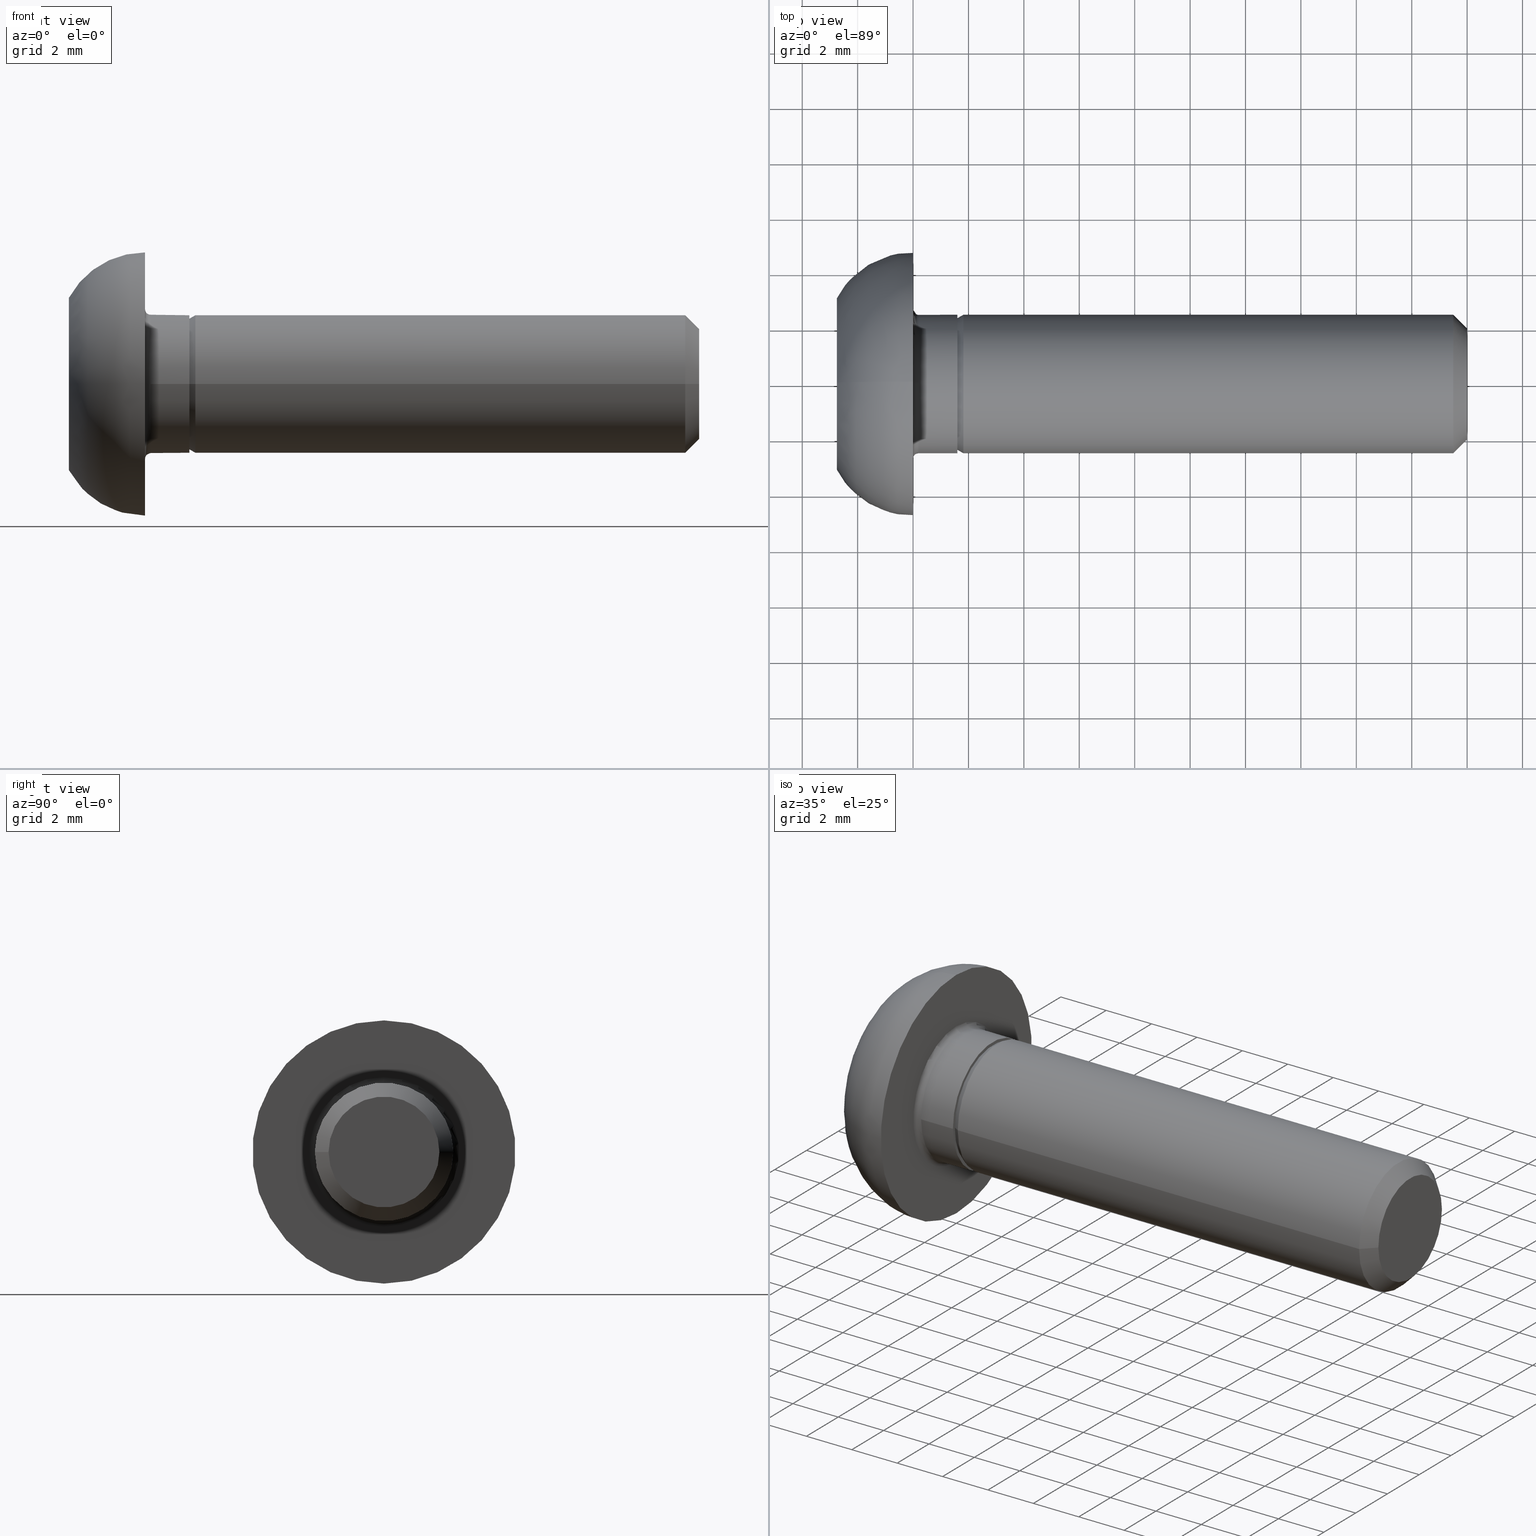
[diagram: canonical four-view strip — front | top / right | iso, engineering-drawing reading convention]
A machine part, canonical four-view strip (front | top / right | iso — engineering-drawing reading convention). The complete STEP part file that produces these views, byte-faithful:
ISO-10303-21;
HEADER;
/* Generated by software containing ST-Developer
 * from STEP Tools, Inc. (www.steptools.com) 
 */

FILE_DESCRIPTION(
/* description */ ('VITE TBEI 7380 10.9 5X20 ZN'),
/* implementation_level */ '2;1');

FILE_NAME(
/* name */ 
'C:\\Users\\tecnico7\\Desktop\\NUOVI DISEGNI 3D\\Vite TBEI UNI 7380-M5
x20 FE 310-0.stp',
/* time_stamp */ '2022-11-21T09:33:20+01:00',
/* author */ ('tecnico7'),
/* organization */ (''),
/* preprocessor_version */ 'ST-DEVELOPER v18.1',
/* originating_system */ 'Autodesk Inventor 2022',
/* authorisation */ '');

FILE_SCHEMA (('AUTOMOTIVE_DESIGN { 1 0 10303 214 3 1 1 }'));
ENDSEC;

DATA;
#10=MECHANICAL_DESIGN_GEOMETRIC_PRESENTATION_REPRESENTATION('',(#13),#512);
#11=SHAPE_REPRESENTATION_RELATIONSHIP('SRR','None',#519,#12);
#12=ADVANCED_BREP_SHAPE_REPRESENTATION('',(#14),#511);
#13=STYLED_ITEM('',(#528),#14);
#14=MANIFOLD_SOLID_BREP('Solido1',#269);
#15=CONICAL_SURFACE('',#311,2.4375,0.523598775598294);
#16=CONICAL_SURFACE('',#315,2.25,0.785398163397446);
#17=CONICAL_SURFACE('',#318,0.9,1.0471975511966);
#18=CYLINDRICAL_SURFACE('',#307,2.5);
#19=CYLINDRICAL_SURFACE('',#313,2.5);
#20=TOROIDAL_SURFACE('',#303,2.7,0.2);
#21=FACE_BOUND('',#62,.T.);
#22=FACE_BOUND('',#66,.T.);
#23=FACE_BOUND('',#73,.T.);
#24=CIRCLE('',#298,4.75);
#25=CIRCLE('',#299,3.125);
#26=CIRCLE('',#300,3.10929276087974);
#27=CIRCLE('',#302,2.7);
#28=CIRCLE('',#304,0.2);
#29=CIRCLE('',#305,2.5);
#30=CIRCLE('',#306,2.5);
#31=CIRCLE('',#308,2.5);
#32=CIRCLE('',#310,2.375);
#33=CIRCLE('',#312,2.5);
#34=CIRCLE('',#314,2.5);
#35=CIRCLE('',#316,2.00000000000001);
#36=(
BOUNDED_SURFACE()
B_SPLINE_SURFACE(2,2,((#444,#445,#446,#447,#448,#449,#450,#451,#452),(#453,
#454,#455,#456,#457,#458,#459,#460,#461),(#462,#463,#464,#465,#466,#467,
#468,#469,#470)),.UNSPECIFIED.,.F.,.T.,.F.)
B_SPLINE_SURFACE_WITH_KNOTS((3,3),(3,2,2,2,3),(-1.075862200454,1.03055320401404E-15),
(-3.14159265358979,-1.5707963267949,0.,1.5707963267949,3.14159265358979),
 .UNSPECIFIED.)
GEOMETRIC_REPRESENTATION_ITEM()
RATIONAL_B_SPLINE_SURFACE(((1.,0.707106781186548,1.,0.707106781186548,1.,
0.707106781186548,1.,0.707106781186548,1.),(0.85877054079699,0.60724247288079,
0.85877054079699,0.60724247288079,0.85877054079699,0.60724247288079,0.85877054079699,
0.60724247288079,0.85877054079699),(1.,0.707106781186548,1.,0.707106781186548,
1.,0.707106781186548,1.,0.707106781186548,1.)))
REPRESENTATION_ITEM('')
SURFACE()
);
#37=FACE_OUTER_BOUND('',#54,.T.);
#38=FACE_OUTER_BOUND('',#55,.T.);
#39=FACE_OUTER_BOUND('',#56,.T.);
#40=FACE_OUTER_BOUND('',#57,.T.);
#41=FACE_OUTER_BOUND('',#58,.T.);
#42=FACE_OUTER_BOUND('',#59,.T.);
#43=FACE_OUTER_BOUND('',#60,.T.);
#44=FACE_OUTER_BOUND('',#61,.T.);
#45=FACE_OUTER_BOUND('',#63,.T.);
#46=FACE_OUTER_BOUND('',#64,.T.);
#47=FACE_OUTER_BOUND('',#65,.T.);
#48=FACE_OUTER_BOUND('',#67,.T.);
#49=FACE_OUTER_BOUND('',#68,.T.);
#50=FACE_OUTER_BOUND('',#69,.T.);
#51=FACE_OUTER_BOUND('',#70,.T.);
#52=FACE_OUTER_BOUND('',#71,.T.);
#53=FACE_OUTER_BOUND('',#72,.T.);
#54=EDGE_LOOP('',(#172,#173,#174,#175));
#55=EDGE_LOOP('',(#176,#177,#178,#179));
#56=EDGE_LOOP('',(#180,#181,#182,#183));
#57=EDGE_LOOP('',(#184,#185,#186,#187));
#58=EDGE_LOOP('',(#188,#189,#190,#191));
#59=EDGE_LOOP('',(#192,#193,#194,#195));
#60=EDGE_LOOP('',(#196,#197,#198,#199));
#61=EDGE_LOOP('',(#200));
#62=EDGE_LOOP('',(#201));
#63=EDGE_LOOP('',(#202,#203,#204,#205,#206));
#64=EDGE_LOOP('',(#207,#208,#209,#210,#211));
#65=EDGE_LOOP('',(#212));
#66=EDGE_LOOP('',(#213));
#67=EDGE_LOOP('',(#214,#215,#216,#217));
#68=EDGE_LOOP('',(#218,#219,#220,#221));
#69=EDGE_LOOP('',(#222,#223,#224,#225));
#70=EDGE_LOOP('',(#226));
#71=EDGE_LOOP('',(#227,#228,#229,#230,#231,#232,#233,#234));
#72=EDGE_LOOP('',(#235));
#73=EDGE_LOOP('',(#236,#237,#238,#239,#240,#241));
#74=LINE('',#403,#91);
#75=LINE('',#405,#92);
#76=LINE('',#406,#93);
#77=LINE('',#413,#94);
#78=LINE('',#414,#95);
#79=LINE('',#421,#96);
#80=LINE('',#422,#97);
#81=LINE('',#429,#98);
#82=LINE('',#430,#99);
#83=LINE('',#437,#100);
#84=LINE('',#438,#101);
#85=LINE('',#443,#102);
#86=LINE('',#488,#103);
#87=LINE('',#495,#104);
#88=LINE('',#499,#105);
#89=LINE('',#503,#106);
#90=LINE('',#507,#107);
#91=VECTOR('',#324,10.);
#92=VECTOR('',#325,10.);
#93=VECTOR('',#326,10.);
#94=VECTOR('',#329,10.);
#95=VECTOR('',#330,10.);
#96=VECTOR('',#333,10.);
#97=VECTOR('',#334,10.);
#98=VECTOR('',#337,10.);
#99=VECTOR('',#338,10.);
#100=VECTOR('',#341,10.);
#101=VECTOR('',#342,10.);
#102=VECTOR('',#345,10.);
#103=VECTOR('',#368,2.5);
#104=VECTOR('',#377,2.4375);
#105=VECTOR('',#382,2.5);
#106=VECTOR('',#387,2.25);
#107=VECTOR('',#392,0.9);
#108=(
BOUNDED_CURVE()
B_SPLINE_CURVE(2,(#399,#400,#401),.UNSPECIFIED.,.F.,.F.)
B_SPLINE_CURVE_WITH_KNOTS((3,3),(0.0112420685802635,0.190748030186979),
 .UNSPECIFIED.)
CURVE()
GEOMETRIC_REPRESENTATION_ITEM()
RATIONAL_B_SPLINE_CURVE((1.02102355330306,1.17897644669695,1.02102355330306))
REPRESENTATION_ITEM('')
);
#109=(
BOUNDED_CURVE()
B_SPLINE_CURVE(2,(#409,#410,#411),.UNSPECIFIED.,.F.,.F.)
B_SPLINE_CURVE_WITH_KNOTS((3,3),(0.0112420685802632,0.190748030186979),
 .UNSPECIFIED.)
CURVE()
GEOMETRIC_REPRESENTATION_ITEM()
RATIONAL_B_SPLINE_CURVE((1.02102355330306,1.17897644669695,1.02102355330306))
REPRESENTATION_ITEM('')
);
#110=(
BOUNDED_CURVE()
B_SPLINE_CURVE(2,(#417,#418,#419),.UNSPECIFIED.,.F.,.F.)
B_SPLINE_CURVE_WITH_KNOTS((3,3),(0.0112420685802635,0.190748030186979),
 .UNSPECIFIED.)
CURVE()
GEOMETRIC_REPRESENTATION_ITEM()
RATIONAL_B_SPLINE_CURVE((1.02102355330306,1.17897644669694,1.02102355330306))
REPRESENTATION_ITEM('')
);
#111=(
BOUNDED_CURVE()
B_SPLINE_CURVE(2,(#425,#426,#427),.UNSPECIFIED.,.F.,.F.)
B_SPLINE_CURVE_WITH_KNOTS((3,3),(0.0112420685802629,0.190748030186978),
 .UNSPECIFIED.)
CURVE()
GEOMETRIC_REPRESENTATION_ITEM()
RATIONAL_B_SPLINE_CURVE((1.02102355330306,1.17897644669695,1.02102355330306))
REPRESENTATION_ITEM('')
);
#112=(
BOUNDED_CURVE()
B_SPLINE_CURVE(2,(#433,#434,#435),.UNSPECIFIED.,.F.,.F.)
B_SPLINE_CURVE_WITH_KNOTS((3,3),(0.0112420685802633,0.190748030186978),
 .UNSPECIFIED.)
CURVE()
GEOMETRIC_REPRESENTATION_ITEM()
RATIONAL_B_SPLINE_CURVE((1.02102355330306,1.17897644669693,1.02102355330306))
REPRESENTATION_ITEM('')
);
#113=(
BOUNDED_CURVE()
B_SPLINE_CURVE(2,(#440,#441,#442),.UNSPECIFIED.,.F.,.F.)
B_SPLINE_CURVE_WITH_KNOTS((3,3),(0.011242068580263,0.190748030186978),
 .UNSPECIFIED.)
CURVE()
GEOMETRIC_REPRESENTATION_ITEM()
RATIONAL_B_SPLINE_CURVE((1.02102355330306,1.17897644669694,1.02102355330306))
REPRESENTATION_ITEM('')
);
#114=VERTEX_POINT('',#397);
#115=VERTEX_POINT('',#398);
#116=VERTEX_POINT('',#402);
#117=VERTEX_POINT('',#404);
#118=VERTEX_POINT('',#408);
#119=VERTEX_POINT('',#412);
#120=VERTEX_POINT('',#416);
#121=VERTEX_POINT('',#420);
#122=VERTEX_POINT('',#424);
#123=VERTEX_POINT('',#428);
#124=VERTEX_POINT('',#432);
#125=VERTEX_POINT('',#436);
#126=VERTEX_POINT('',#471);
#127=VERTEX_POINT('',#473);
#128=VERTEX_POINT('',#477);
#129=VERTEX_POINT('',#480);
#130=VERTEX_POINT('',#482);
#131=VERTEX_POINT('',#486);
#132=VERTEX_POINT('',#490);
#133=VERTEX_POINT('',#493);
#134=VERTEX_POINT('',#497);
#135=VERTEX_POINT('',#501);
#136=VERTEX_POINT('',#506);
#137=EDGE_CURVE('',#114,#115,#108,.T.);
#138=EDGE_CURVE('',#116,#114,#74,.T.);
#139=EDGE_CURVE('',#117,#116,#75,.T.);
#140=EDGE_CURVE('',#117,#115,#76,.T.);
#141=EDGE_CURVE('',#118,#114,#109,.T.);
#142=EDGE_CURVE('',#119,#118,#77,.T.);
#143=EDGE_CURVE('',#116,#119,#78,.T.);
#144=EDGE_CURVE('',#115,#120,#110,.T.);
#145=EDGE_CURVE('',#121,#117,#79,.T.);
#146=EDGE_CURVE('',#121,#120,#80,.T.);
#147=EDGE_CURVE('',#122,#118,#111,.T.);
#148=EDGE_CURVE('',#123,#122,#81,.T.);
#149=EDGE_CURVE('',#119,#123,#82,.T.);
#150=EDGE_CURVE('',#120,#124,#112,.T.);
#151=EDGE_CURVE('',#125,#121,#83,.T.);
#152=EDGE_CURVE('',#125,#124,#84,.T.);
#153=EDGE_CURVE('',#124,#122,#113,.T.);
#154=EDGE_CURVE('',#123,#125,#85,.T.);
#155=EDGE_CURVE('',#126,#126,#24,.T.);
#156=EDGE_CURVE('',#126,#127,#25,.T.);
#157=EDGE_CURVE('',#127,#127,#26,.T.);
#158=EDGE_CURVE('',#128,#128,#27,.T.);
#159=EDGE_CURVE('',#128,#129,#28,.T.);
#160=EDGE_CURVE('',#130,#129,#29,.T.);
#161=EDGE_CURVE('',#129,#130,#30,.T.);
#162=EDGE_CURVE('',#131,#131,#31,.T.);
#163=EDGE_CURVE('',#131,#130,#86,.T.);
#164=EDGE_CURVE('',#132,#132,#32,.T.);
#165=EDGE_CURVE('',#133,#133,#33,.T.);
#166=EDGE_CURVE('',#133,#132,#87,.T.);
#167=EDGE_CURVE('',#134,#134,#34,.T.);
#168=EDGE_CURVE('',#134,#133,#88,.T.);
#169=EDGE_CURVE('',#135,#135,#35,.T.);
#170=EDGE_CURVE('',#135,#134,#89,.T.);
#171=EDGE_CURVE('',#136,#114,#90,.T.);
#172=ORIENTED_EDGE('',*,*,#137,.F.);
#173=ORIENTED_EDGE('',*,*,#138,.F.);
#174=ORIENTED_EDGE('',*,*,#139,.F.);
#175=ORIENTED_EDGE('',*,*,#140,.T.);
#176=ORIENTED_EDGE('',*,*,#141,.F.);
#177=ORIENTED_EDGE('',*,*,#142,.F.);
#178=ORIENTED_EDGE('',*,*,#143,.F.);
#179=ORIENTED_EDGE('',*,*,#138,.T.);
#180=ORIENTED_EDGE('',*,*,#144,.F.);
#181=ORIENTED_EDGE('',*,*,#140,.F.);
#182=ORIENTED_EDGE('',*,*,#145,.F.);
#183=ORIENTED_EDGE('',*,*,#146,.T.);
#184=ORIENTED_EDGE('',*,*,#147,.F.);
#185=ORIENTED_EDGE('',*,*,#148,.F.);
#186=ORIENTED_EDGE('',*,*,#149,.F.);
#187=ORIENTED_EDGE('',*,*,#142,.T.);
#188=ORIENTED_EDGE('',*,*,#150,.F.);
#189=ORIENTED_EDGE('',*,*,#146,.F.);
#190=ORIENTED_EDGE('',*,*,#151,.F.);
#191=ORIENTED_EDGE('',*,*,#152,.T.);
#192=ORIENTED_EDGE('',*,*,#153,.F.);
#193=ORIENTED_EDGE('',*,*,#152,.F.);
#194=ORIENTED_EDGE('',*,*,#154,.F.);
#195=ORIENTED_EDGE('',*,*,#148,.T.);
#196=ORIENTED_EDGE('',*,*,#155,.F.);
#197=ORIENTED_EDGE('',*,*,#156,.T.);
#198=ORIENTED_EDGE('',*,*,#157,.T.);
#199=ORIENTED_EDGE('',*,*,#156,.F.);
#200=ORIENTED_EDGE('',*,*,#155,.T.);
#201=ORIENTED_EDGE('',*,*,#158,.F.);
#202=ORIENTED_EDGE('',*,*,#158,.T.);
#203=ORIENTED_EDGE('',*,*,#159,.T.);
#204=ORIENTED_EDGE('',*,*,#160,.F.);
#205=ORIENTED_EDGE('',*,*,#161,.F.);
#206=ORIENTED_EDGE('',*,*,#159,.F.);
#207=ORIENTED_EDGE('',*,*,#162,.F.);
#208=ORIENTED_EDGE('',*,*,#163,.T.);
#209=ORIENTED_EDGE('',*,*,#160,.T.);
#210=ORIENTED_EDGE('',*,*,#161,.T.);
#211=ORIENTED_EDGE('',*,*,#163,.F.);
#212=ORIENTED_EDGE('',*,*,#162,.T.);
#213=ORIENTED_EDGE('',*,*,#164,.F.);
#214=ORIENTED_EDGE('',*,*,#165,.F.);
#215=ORIENTED_EDGE('',*,*,#166,.T.);
#216=ORIENTED_EDGE('',*,*,#164,.T.);
#217=ORIENTED_EDGE('',*,*,#166,.F.);
#218=ORIENTED_EDGE('',*,*,#167,.F.);
#219=ORIENTED_EDGE('',*,*,#168,.T.);
#220=ORIENTED_EDGE('',*,*,#165,.T.);
#221=ORIENTED_EDGE('',*,*,#168,.F.);
#222=ORIENTED_EDGE('',*,*,#169,.F.);
#223=ORIENTED_EDGE('',*,*,#170,.T.);
#224=ORIENTED_EDGE('',*,*,#167,.T.);
#225=ORIENTED_EDGE('',*,*,#170,.F.);
#226=ORIENTED_EDGE('',*,*,#169,.T.);
#227=ORIENTED_EDGE('',*,*,#171,.T.);
#228=ORIENTED_EDGE('',*,*,#137,.T.);
#229=ORIENTED_EDGE('',*,*,#144,.T.);
#230=ORIENTED_EDGE('',*,*,#150,.T.);
#231=ORIENTED_EDGE('',*,*,#153,.T.);
#232=ORIENTED_EDGE('',*,*,#147,.T.);
#233=ORIENTED_EDGE('',*,*,#141,.T.);
#234=ORIENTED_EDGE('',*,*,#171,.F.);
#235=ORIENTED_EDGE('',*,*,#157,.F.);
#236=ORIENTED_EDGE('',*,*,#154,.T.);
#237=ORIENTED_EDGE('',*,*,#151,.T.);
#238=ORIENTED_EDGE('',*,*,#145,.T.);
#239=ORIENTED_EDGE('',*,*,#139,.T.);
#240=ORIENTED_EDGE('',*,*,#143,.T.);
#241=ORIENTED_EDGE('',*,*,#149,.T.);
#242=PLANE('',#292);
#243=PLANE('',#293);
#244=PLANE('',#294);
#245=PLANE('',#295);
#246=PLANE('',#296);
#247=PLANE('',#297);
#248=PLANE('',#301);
#249=PLANE('',#309);
#250=PLANE('',#317);
#251=PLANE('',#319);
#252=ADVANCED_FACE('',(#37),#242,.F.);
#253=ADVANCED_FACE('',(#38),#243,.F.);
#254=ADVANCED_FACE('',(#39),#244,.F.);
#255=ADVANCED_FACE('',(#40),#245,.F.);
#256=ADVANCED_FACE('',(#41),#246,.F.);
#257=ADVANCED_FACE('',(#42),#247,.F.);
#258=ADVANCED_FACE('',(#43),#36,.F.);
#259=ADVANCED_FACE('',(#44,#21),#248,.T.);
#260=ADVANCED_FACE('',(#45),#20,.F.);
#261=ADVANCED_FACE('',(#46),#18,.T.);
#262=ADVANCED_FACE('',(#47,#22),#249,.T.);
#263=ADVANCED_FACE('',(#48),#15,.T.);
#264=ADVANCED_FACE('',(#49),#19,.T.);
#265=ADVANCED_FACE('',(#50),#16,.T.);
#266=ADVANCED_FACE('',(#51),#250,.T.);
#267=ADVANCED_FACE('',(#52),#17,.F.);
#268=ADVANCED_FACE('',(#53,#23),#251,.T.);
#269=CLOSED_SHELL('',(#252,#253,#254,#255,#256,#257,#258,#259,#260,#261,
#262,#263,#264,#265,#266,#267,#268));
#270=DERIVED_UNIT_ELEMENT(#273,1.);
#271=DERIVED_UNIT_ELEMENT(#514,-3.);
#272=DIMENSIONAL_EXPONENTS(1.,0.,0.,0.,0.,0.,0.);
#273=(
CONVERSION_BASED_UNIT('gram',#275)
MASS_UNIT()
NAMED_UNIT(#272)
);
#274=(
MASS_UNIT()
NAMED_UNIT(*)
SI_UNIT(.KILO.,.GRAM.)
);
#275=MASS_MEASURE_WITH_UNIT(MASS_MEASURE(0.001),#274);
#276=DERIVED_UNIT((#270,#271));
#277=MEASURE_REPRESENTATION_ITEM('density measure',
POSITIVE_RATIO_MEASURE(7.85),#276);
#278=PROPERTY_DEFINITION_REPRESENTATION(#283,#280);
#279=PROPERTY_DEFINITION_REPRESENTATION(#284,#281);
#280=REPRESENTATION('material name',(#282),#511);
#281=REPRESENTATION('density',(#277),#511);
#282=DESCRIPTIVE_REPRESENTATION_ITEM('FE 310-0','FE 310-0');
#283=PROPERTY_DEFINITION('material property','material name',#521);
#284=PROPERTY_DEFINITION('material property','density of part',#521);
#285=DATE_TIME_ROLE('creation_date');
#286=APPLIED_DATE_AND_TIME_ASSIGNMENT(#287,#285,(#521));
#287=DATE_AND_TIME(#288,#289);
#288=CALENDAR_DATE(2003,25,9);
#289=LOCAL_TIME(0,0,0.,#290);
#290=COORDINATED_UNIVERSAL_TIME_OFFSET(0,0,.BEHIND.);
#291=AXIS2_PLACEMENT_3D('placement',#395,#320,#321);
#292=AXIS2_PLACEMENT_3D('',#396,#322,#323);
#293=AXIS2_PLACEMENT_3D('',#407,#327,#328);
#294=AXIS2_PLACEMENT_3D('',#415,#331,#332);
#295=AXIS2_PLACEMENT_3D('',#423,#335,#336);
#296=AXIS2_PLACEMENT_3D('',#431,#339,#340);
#297=AXIS2_PLACEMENT_3D('',#439,#343,#344);
#298=AXIS2_PLACEMENT_3D('',#472,#346,#347);
#299=AXIS2_PLACEMENT_3D('',#474,#348,#349);
#300=AXIS2_PLACEMENT_3D('',#475,#350,#351);
#301=AXIS2_PLACEMENT_3D('',#476,#352,#353);
#302=AXIS2_PLACEMENT_3D('',#478,#354,#355);
#303=AXIS2_PLACEMENT_3D('',#479,#356,#357);
#304=AXIS2_PLACEMENT_3D('',#481,#358,#359);
#305=AXIS2_PLACEMENT_3D('',#483,#360,#361);
#306=AXIS2_PLACEMENT_3D('',#484,#362,#363);
#307=AXIS2_PLACEMENT_3D('',#485,#364,#365);
#308=AXIS2_PLACEMENT_3D('',#487,#366,#367);
#309=AXIS2_PLACEMENT_3D('',#489,#369,#370);
#310=AXIS2_PLACEMENT_3D('',#491,#371,#372);
#311=AXIS2_PLACEMENT_3D('',#492,#373,#374);
#312=AXIS2_PLACEMENT_3D('',#494,#375,#376);
#313=AXIS2_PLACEMENT_3D('',#496,#378,#379);
#314=AXIS2_PLACEMENT_3D('',#498,#380,#381);
#315=AXIS2_PLACEMENT_3D('',#500,#383,#384);
#316=AXIS2_PLACEMENT_3D('',#502,#385,#386);
#317=AXIS2_PLACEMENT_3D('',#504,#388,#389);
#318=AXIS2_PLACEMENT_3D('',#505,#390,#391);
#319=AXIS2_PLACEMENT_3D('',#508,#393,#394);
#320=DIRECTION('axis',(0.,0.,1.));
#321=DIRECTION('refdir',(1.,0.,0.));
#322=DIRECTION('center_axis',(8.45258323685083E-17,-0.866025403784439,0.5));
#323=DIRECTION('ref_axis',(0.,-0.5,-0.866025403784439));
#324=DIRECTION('',(1.,9.76020241428709E-17,0.));
#325=DIRECTION('',(4.68338106295776E-17,-0.5,-0.866025403784439));
#326=DIRECTION('',(1.,9.76020241428709E-17,0.));
#327=DIRECTION('center_axis',(8.45258323685083E-17,-0.866025403784439,-0.5));
#328=DIRECTION('ref_axis',(0.,0.5,-0.866025403784439));
#329=DIRECTION('',(1.,9.76020241428709E-17,0.));
#330=DIRECTION('',(-4.68338106295776E-17,0.5,-0.866025403784439));
#331=DIRECTION('center_axis',(3.12808417570414E-32,-3.20493781063927E-16,
1.));
#332=DIRECTION('ref_axis',(1.,0.,-3.12808417570414E-32));
#333=DIRECTION('',(9.36676212591553E-17,-1.,-3.20493781063927E-16));
#334=DIRECTION('',(1.,9.76020241428709E-17,0.));
#335=DIRECTION('center_axis',(0.,0.,-1.));
#336=DIRECTION('ref_axis',(-1.,0.,0.));
#337=DIRECTION('',(1.,9.76020241428709E-17,0.));
#338=DIRECTION('',(-9.36676212591553E-17,1.,0.));
#339=DIRECTION('center_axis',(-8.45258323685083E-17,0.866025403784438,0.5));
#340=DIRECTION('ref_axis',(1.,0.,1.69051664737016E-16));
#341=DIRECTION('',(4.68338106295777E-17,-0.5,0.866025403784438));
#342=DIRECTION('',(1.,9.76020241428709E-17,0.));
#343=DIRECTION('center_axis',(-8.45258323685083E-17,0.866025403784439,-0.5));
#344=DIRECTION('ref_axis',(0.,0.5,0.866025403784439));
#345=DIRECTION('',(-4.68338106295776E-17,0.5,0.866025403784439));
#346=DIRECTION('center_axis',(1.,9.36676212591553E-17,0.));
#347=DIRECTION('ref_axis',(0.,1.,0.));
#348=DIRECTION('center_axis',(9.36676212591553E-17,-1.,-1.22464679914735E-16));
#349=DIRECTION('ref_axis',(1.14709752558771E-32,-1.22464679914735E-16,1.));
#350=DIRECTION('center_axis',(1.,9.36676212591553E-17,0.));
#351=DIRECTION('ref_axis',(0.,1.,0.));
#352=DIRECTION('center_axis',(1.,9.36676212591553E-17,0.));
#353=DIRECTION('ref_axis',(0.,0.,-1.));
#354=DIRECTION('center_axis',(1.,9.36676212591553E-17,0.));
#355=DIRECTION('ref_axis',(0.,1.,0.));
#356=DIRECTION('center_axis',(1.,9.36676212591553E-17,0.));
#357=DIRECTION('ref_axis',(0.,0.,-1.));
#358=DIRECTION('center_axis',(9.36676212591553E-17,-1.,-1.22464679914735E-16));
#359=DIRECTION('ref_axis',(0.,-1.22464679914735E-16,1.));
#360=DIRECTION('center_axis',(1.,9.36676212591553E-17,0.));
#361=DIRECTION('ref_axis',(0.,1.,0.));
#362=DIRECTION('center_axis',(1.,9.36676212591553E-17,0.));
#363=DIRECTION('ref_axis',(0.,1.,0.));
#364=DIRECTION('center_axis',(1.,9.36676212591553E-17,0.));
#365=DIRECTION('ref_axis',(0.,1.,0.));
#366=DIRECTION('center_axis',(1.,9.36676212591553E-17,0.));
#367=DIRECTION('ref_axis',(0.,1.,0.));
#368=DIRECTION('',(-1.,-9.36676212591553E-17,0.));
#369=DIRECTION('center_axis',(1.,9.36676212591553E-17,0.));
#370=DIRECTION('ref_axis',(0.,0.,-1.));
#371=DIRECTION('center_axis',(1.,9.36676212591553E-17,0.));
#372=DIRECTION('ref_axis',(0.,1.,0.));
#373=DIRECTION('center_axis',(1.,9.36676212591553E-17,0.));
#374=DIRECTION('ref_axis',(0.,1.,0.));
#375=DIRECTION('center_axis',(1.,9.36676212591553E-17,0.));
#376=DIRECTION('ref_axis',(0.,1.,0.));
#377=DIRECTION('',(-0.866025403784441,0.499999999999996,6.12323399573672E-17));
#378=DIRECTION('center_axis',(1.,9.36676212591553E-17,0.));
#379=DIRECTION('ref_axis',(0.,1.,0.));
#380=DIRECTION('center_axis',(1.,9.36676212591553E-17,0.));
#381=DIRECTION('ref_axis',(0.,1.,0.));
#382=DIRECTION('',(-1.,-9.36676212591553E-17,0.));
#383=DIRECTION('center_axis',(-1.,-9.36676212591553E-17,0.));
#384=DIRECTION('ref_axis',(0.,1.,0.));
#385=DIRECTION('center_axis',(1.,9.36676212591553E-17,0.));
#386=DIRECTION('ref_axis',(0.,1.,0.));
#387=DIRECTION('',(-0.707106781186549,-0.707106781186546,-8.65956056235491E-17));
#388=DIRECTION('center_axis',(1.,9.36676212591553E-17,0.));
#389=DIRECTION('ref_axis',(0.,0.,-1.));
#390=DIRECTION('center_axis',(-1.,-9.36676212591553E-17,0.));
#391=DIRECTION('ref_axis',(0.,1.,0.));
#392=DIRECTION('',(-0.5,-0.866025403784438,-1.06057523872491E-16));
#393=DIRECTION('center_axis',(-1.,-9.36676212591553E-17,0.));
#394=DIRECTION('ref_axis',(0.,0.,1.));
#395=CARTESIAN_POINT('',(0.,0.,0.));
#396=CARTESIAN_POINT('Origin',(-2.75,-1.73205080756888,-2.8582503329642E-16));
#397=CARTESIAN_POINT('',(-1.15076951545867,-1.73205080756888,-2.8582503329642E-16));
#398=CARTESIAN_POINT('',(-1.15076951545867,-0.866025403784439,1.5));
#399=CARTESIAN_POINT('Ctrl Pts',(-1.15076951545867,-1.73205080756888,-2.8582503329642E-16));
#400=CARTESIAN_POINT('Ctrl Pts',(-0.900769515458671,-1.29903810567666,0.75));
#401=CARTESIAN_POINT('Ctrl Pts',(-1.15076951545867,-0.866025403784439,1.5));
#402=CARTESIAN_POINT('',(-2.75,-1.73205080756888,-2.8582503329642E-16));
#403=CARTESIAN_POINT('',(-2.75,-1.73205080756888,-2.8582503329642E-16));
#404=CARTESIAN_POINT('',(-2.75,-0.866025403784439,1.5));
#405=CARTESIAN_POINT('',(-2.75,-1.51554445662277,0.374999999999999));
#406=CARTESIAN_POINT('',(-2.75,-0.866025403784439,1.5));
#407=CARTESIAN_POINT('Origin',(-2.75,-0.866025403784439,-1.5));
#408=CARTESIAN_POINT('',(-1.15076951545867,-0.866025403784439,-1.5));
#409=CARTESIAN_POINT('Ctrl Pts',(-1.15076951545867,-0.866025403784439,-1.5));
#410=CARTESIAN_POINT('Ctrl Pts',(-0.900769515458671,-1.29903810567666,-0.75));
#411=CARTESIAN_POINT('Ctrl Pts',(-1.15076951545867,-1.73205080756888,-2.8582503329642E-16));
#412=CARTESIAN_POINT('',(-2.75,-0.866025403784439,-1.5));
#413=CARTESIAN_POINT('',(-2.75,-0.866025403784439,-1.5));
#414=CARTESIAN_POINT('',(-2.75,-1.08253175473055,-1.125));
#415=CARTESIAN_POINT('Origin',(-2.75,-0.866025403784439,1.5));
#416=CARTESIAN_POINT('',(-1.15076951545867,0.866025403784438,1.5));
#417=CARTESIAN_POINT('Ctrl Pts',(-1.15076951545867,-0.866025403784439,1.5));
#418=CARTESIAN_POINT('Ctrl Pts',(-0.900769515458672,-1.23165366794353E-15,
1.5));
#419=CARTESIAN_POINT('Ctrl Pts',(-1.15076951545867,0.866025403784438,1.5));
#420=CARTESIAN_POINT('',(-2.75,0.866025403784438,1.5));
#421=CARTESIAN_POINT('',(-2.75,-0.433012701892221,1.5));
#422=CARTESIAN_POINT('',(-2.75,0.866025403784438,1.5));
#423=CARTESIAN_POINT('Origin',(-2.75,0.866025403784438,-1.5));
#424=CARTESIAN_POINT('',(-1.15076951545867,0.866025403784439,-1.5));
#425=CARTESIAN_POINT('Ctrl Pts',(-1.15076951545867,0.866025403784439,-1.5));
#426=CARTESIAN_POINT('Ctrl Pts',(-0.900769515458672,-8.50014503228635E-16,
-1.5));
#427=CARTESIAN_POINT('Ctrl Pts',(-1.15076951545867,-0.866025403784439,-1.5));
#428=CARTESIAN_POINT('',(-2.75,0.866025403784438,-1.5));
#429=CARTESIAN_POINT('',(-2.75,0.866025403784438,-1.5));
#430=CARTESIAN_POINT('',(-2.75,0.433012701892218,-1.5));
#431=CARTESIAN_POINT('Origin',(-2.75,0.866025403784438,1.5));
#432=CARTESIAN_POINT('',(-1.15076951545867,1.73205080756888,8.24397991328737E-16));
#433=CARTESIAN_POINT('Ctrl Pts',(-1.15076951545867,0.866025403784438,1.5));
#434=CARTESIAN_POINT('Ctrl Pts',(-0.900769515458673,1.29903810567666,0.750000000000001));
#435=CARTESIAN_POINT('Ctrl Pts',(-1.15076951545867,1.73205080756888,8.24397991328737E-16));
#436=CARTESIAN_POINT('',(-2.75,1.73205080756888,8.24397991328737E-16));
#437=CARTESIAN_POINT('',(-2.75,1.08253175473055,1.125));
#438=CARTESIAN_POINT('',(-2.75,1.73205080756888,8.24397991328737E-16));
#439=CARTESIAN_POINT('Origin',(-2.75,1.73205080756888,8.24397991328737E-16));
#440=CARTESIAN_POINT('Ctrl Pts',(-1.15076951545867,1.73205080756888,8.24397991328737E-16));
#441=CARTESIAN_POINT('Ctrl Pts',(-0.900769515458673,1.29903810567666,-0.75));
#442=CARTESIAN_POINT('Ctrl Pts',(-1.15076951545867,0.866025403784439,-1.5));
#443=CARTESIAN_POINT('',(-2.75,1.51554445662277,-0.375));
#444=CARTESIAN_POINT('Ctrl Pts',(-2.75,-2.2004762515567E-15,3.10929276087974));
#445=CARTESIAN_POINT('Ctrl Pts',(-2.75,-3.10929276087974,3.10929276087974));
#446=CARTESIAN_POINT('Ctrl Pts',(-2.75,-3.10929276087974,0.));
#447=CARTESIAN_POINT('Ctrl Pts',(-2.75,-3.10929276087974,-3.10929276087974));
#448=CARTESIAN_POINT('Ctrl Pts',(-2.75,-2.2004762515567E-15,-3.10929276087974));
#449=CARTESIAN_POINT('Ctrl Pts',(-2.75,3.10929276087974,-3.10929276087974));
#450=CARTESIAN_POINT('Ctrl Pts',(-2.75,3.10929276087974,0.));
#451=CARTESIAN_POINT('Ctrl Pts',(-2.75,3.10929276087974,3.10929276087974));
#452=CARTESIAN_POINT('Ctrl Pts',(-2.75,-2.2004762515567E-15,3.10929276087974));
#453=CARTESIAN_POINT('Ctrl Pts',(-1.86444004445484,-2.11752795703842E-15,
4.75));
#454=CARTESIAN_POINT('Ctrl Pts',(-1.86444004445484,-4.75,4.75));
#455=CARTESIAN_POINT('Ctrl Pts',(-1.86444004445484,-4.75000000000001,0.));
#456=CARTESIAN_POINT('Ctrl Pts',(-1.86444004445484,-4.75,-4.75));
#457=CARTESIAN_POINT('Ctrl Pts',(-1.86444004445484,-2.11752795703842E-15,
-4.75));
#458=CARTESIAN_POINT('Ctrl Pts',(-1.86444004445484,4.75,-4.75));
#459=CARTESIAN_POINT('Ctrl Pts',(-1.86444004445484,4.75,0.));
#460=CARTESIAN_POINT('Ctrl Pts',(-1.86444004445484,4.75,4.75));
#461=CARTESIAN_POINT('Ctrl Pts',(-1.86444004445484,-2.11752795703842E-15,
4.75));
#462=CARTESIAN_POINT('Ctrl Pts',(3.22047876254388E-15,-1.94289029309402E-15,
4.75));
#463=CARTESIAN_POINT('Ctrl Pts',(3.66539996352487E-15,-4.75,4.75));
#464=CARTESIAN_POINT('Ctrl Pts',(3.66539996352487E-15,-4.75,0.));
#465=CARTESIAN_POINT('Ctrl Pts',(3.66539996352487E-15,-4.75,-4.75));
#466=CARTESIAN_POINT('Ctrl Pts',(3.22047876254388E-15,-1.94289029309402E-15,
-4.75));
#467=CARTESIAN_POINT('Ctrl Pts',(2.77555756156289E-15,4.75,-4.75));
#468=CARTESIAN_POINT('Ctrl Pts',(2.77555756156289E-15,4.75,0.));
#469=CARTESIAN_POINT('Ctrl Pts',(2.77555756156289E-15,4.75,4.75));
#470=CARTESIAN_POINT('Ctrl Pts',(3.22047876254388E-15,-1.94289029309402E-15,
4.75));
#471=CARTESIAN_POINT('',(2.77555756156289E-15,-2.52459752268902E-15,4.75));
#472=CARTESIAN_POINT('Origin',(2.77555756156289E-15,-1.87335242518311E-15,
0.));
#473=CARTESIAN_POINT('',(-2.75,-2.58125479427904E-15,3.10929276087974));
#474=CARTESIAN_POINT('Origin',(1.86403347908003E-32,-2.14189539795547E-15,
1.625));
#475=CARTESIAN_POINT('Origin',(-2.75,-2.13093838364578E-15,0.));
#476=CARTESIAN_POINT('Origin',(2.08166817117217E-15,3.725,0.));
#477=CARTESIAN_POINT('',(2.22044604925031E-15,-2.56983420927193E-15,2.7));
#478=CARTESIAN_POINT('Origin',(2.22044604925031E-15,-1.87335242518311E-15,
0.));
#479=CARTESIAN_POINT('Origin',(0.200000000000002,-2.22044604925031E-15,
0.));
#480=CARTESIAN_POINT('',(0.200000000000002,-2.52660774903715E-15,2.5));
#481=CARTESIAN_POINT('Origin',(0.200000000000002,-2.5511006850201E-15,2.7));
#482=CARTESIAN_POINT('',(0.200000000000002,-2.5,-3.06161699786839E-16));
#483=CARTESIAN_POINT('Origin',(0.200000000000002,-1.85461890093128E-15,
0.));
#484=CARTESIAN_POINT('Origin',(0.200000000000002,-1.85461890093128E-15,
0.));
#485=CARTESIAN_POINT('Origin',(0.900000000000004,-1.78905156604987E-15,
0.));
#486=CARTESIAN_POINT('',(1.60000000000001,-2.5,-3.06161699786839E-16));
#487=CARTESIAN_POINT('Origin',(1.60000000000001,-1.72348423116846E-15,0.));
#488=CARTESIAN_POINT('',(0.900000000000004,-2.5,-3.06161699786839E-16));
#489=CARTESIAN_POINT('Origin',(1.60000000000001,2.4375,0.));
#490=CARTESIAN_POINT('',(1.60000000000001,-2.375,-2.90853614797497E-16));
#491=CARTESIAN_POINT('Origin',(1.60000000000001,-1.72348423116846E-15,0.));
#492=CARTESIAN_POINT('Origin',(1.70825317547306,-1.71334441372815E-15,0.));
#493=CARTESIAN_POINT('',(1.81650635094612,-2.50000000000001,-3.06161699786839E-16));
#494=CARTESIAN_POINT('Origin',(1.81650635094612,-1.70320459628784E-15,0.));
#495=CARTESIAN_POINT('',(1.70825317547306,-2.43750000000001,-2.98507657292168E-16));
#496=CARTESIAN_POINT('Origin',(10.6582531754731,-8.75019203458707E-16,0.));
#497=CARTESIAN_POINT('',(19.5,-2.5,-3.06161699786839E-16));
#498=CARTESIAN_POINT('Origin',(19.5,-4.68338106295774E-17,0.));
#499=CARTESIAN_POINT('',(10.6582531754731,-2.5,-3.06161699786839E-16));
#500=CARTESIAN_POINT('Origin',(19.75,-2.34169053147888E-17,0.));
#501=CARTESIAN_POINT('',(20.,-2.00000000000001,-2.44929359829471E-16));
#502=CARTESIAN_POINT('Origin',(20.,0.,0.));
#503=CARTESIAN_POINT('',(19.75,-2.25,-2.75545529808155E-16));
#504=CARTESIAN_POINT('Origin',(20.,1.,0.));
#505=CARTESIAN_POINT('Origin',(-0.670384757729335,-1.93614577076801E-15,
0.));
#506=CARTESIAN_POINT('',(-0.150769515458671,-1.80096748338156E-15,0.));
#507=CARTESIAN_POINT('',(-0.670384757729335,-0.900000000000002,-1.10218211923262E-16));
#508=CARTESIAN_POINT('Origin',(-2.75,2.45464638043987,0.));
#509=UNCERTAINTY_MEASURE_WITH_UNIT(LENGTH_MEASURE(0.01),#513,
'DISTANCE_ACCURACY_VALUE',
'Maximum model space distance between geometric entities at asserted c
onnectivities');
#510=UNCERTAINTY_MEASURE_WITH_UNIT(LENGTH_MEASURE(0.01),#513,
'DISTANCE_ACCURACY_VALUE',
'Maximum model space distance between geometric entities at asserted c
onnectivities');
#511=(
GEOMETRIC_REPRESENTATION_CONTEXT(3)
GLOBAL_UNCERTAINTY_ASSIGNED_CONTEXT((#509))
GLOBAL_UNIT_ASSIGNED_CONTEXT((#513,#515,#516))
REPRESENTATION_CONTEXT('','3D')
);
#512=(
GEOMETRIC_REPRESENTATION_CONTEXT(3)
GLOBAL_UNCERTAINTY_ASSIGNED_CONTEXT((#510))
GLOBAL_UNIT_ASSIGNED_CONTEXT((#513,#515,#516))
REPRESENTATION_CONTEXT('','3D')
);
#513=(
LENGTH_UNIT()
NAMED_UNIT(*)
SI_UNIT(.MILLI.,.METRE.)
);
#514=(
LENGTH_UNIT()
NAMED_UNIT(*)
SI_UNIT(.CENTI.,.METRE.)
);
#515=(
NAMED_UNIT(*)
PLANE_ANGLE_UNIT()
SI_UNIT($,.RADIAN.)
);
#516=(
NAMED_UNIT(*)
SI_UNIT($,.STERADIAN.)
SOLID_ANGLE_UNIT()
);
#517=SHAPE_DEFINITION_REPRESENTATION(#518,#519);
#518=PRODUCT_DEFINITION_SHAPE('',$,#521);
#519=SHAPE_REPRESENTATION('',(#291),#511);
#520=PRODUCT_DEFINITION_CONTEXT('part definition',#525,'design');
#521=PRODUCT_DEFINITION('Vite TBEI UNI 7380-M5x20 FE 310-0',
'Vite TBEI UNI 7380-M5x20 FE 310-0',#522,#520);
#522=PRODUCT_DEFINITION_FORMATION('A',$,#527);
#523=PRODUCT_RELATED_PRODUCT_CATEGORY(
'Vite TBEI UNI 7380-M5x20 FE 310-0','Vite TBEI UNI 7380-M5x20 FE 310-0',
(#527));
#524=APPLICATION_PROTOCOL_DEFINITION('international standard',
'automotive_design',2009,#525);
#525=APPLICATION_CONTEXT(
'Core Data for Automotive Mechanical Design Process');
#526=PRODUCT_CONTEXT('part definition',#525,'mechanical');
#527=PRODUCT('Vite TBEI UNI 7380-M5x20 FE 310-0',
'Vite TBEI UNI 7380-M5x20 FE 310-0','VITE TBEI 7380 10.9 5X20 ZN',(#526));
#528=PRESENTATION_STYLE_ASSIGNMENT((#529));
#529=SURFACE_STYLE_USAGE(.BOTH.,#532);
#530=SURFACE_STYLE_RENDERING_WITH_PROPERTIES($,#536,(#531));
#531=SURFACE_STYLE_TRANSPARENT(0.);
#532=SURFACE_SIDE_STYLE('',(#533,#530));
#533=SURFACE_STYLE_FILL_AREA(#534);
#534=FILL_AREA_STYLE('',(#535));
#535=FILL_AREA_STYLE_COLOUR('',#536);
#536=COLOUR_RGB('',0.850980392156863,0.843137254901961,0.52156862745098);
ENDSEC;
END-ISO-10303-21;
